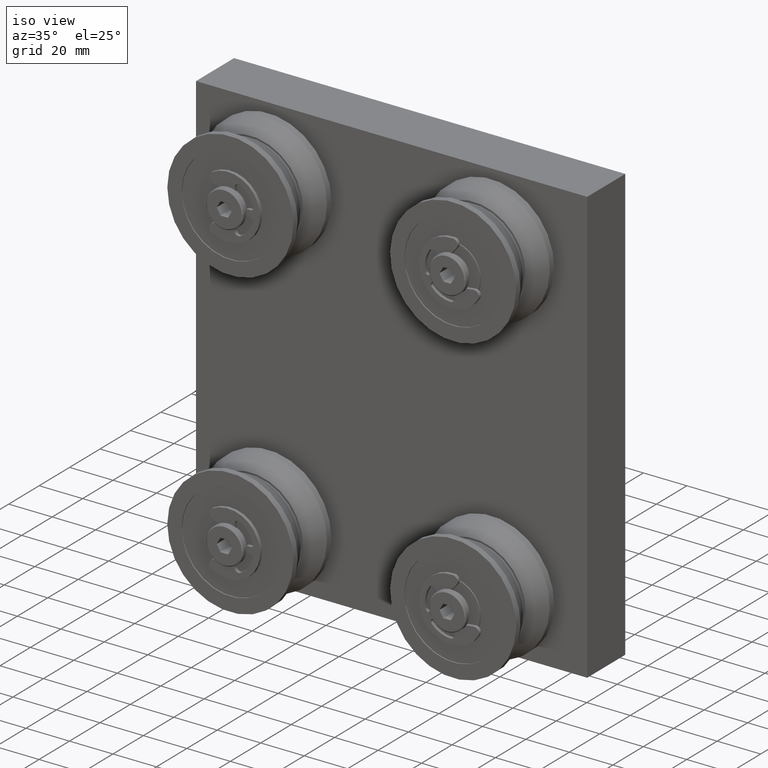
[diagram: clean part render]
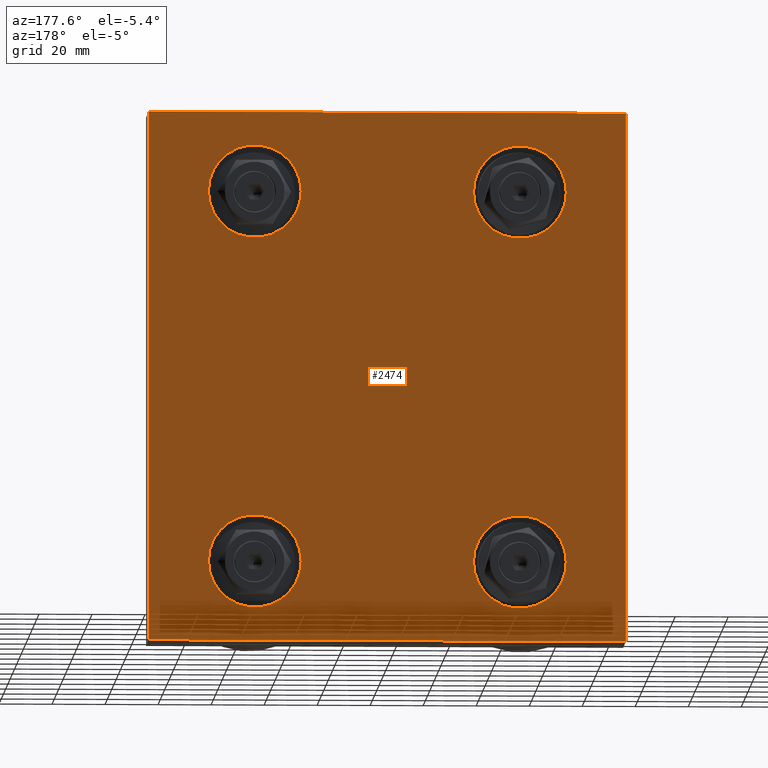
[diagram: tour spotlight — one face highlighted and labeled with its STEP entity id]
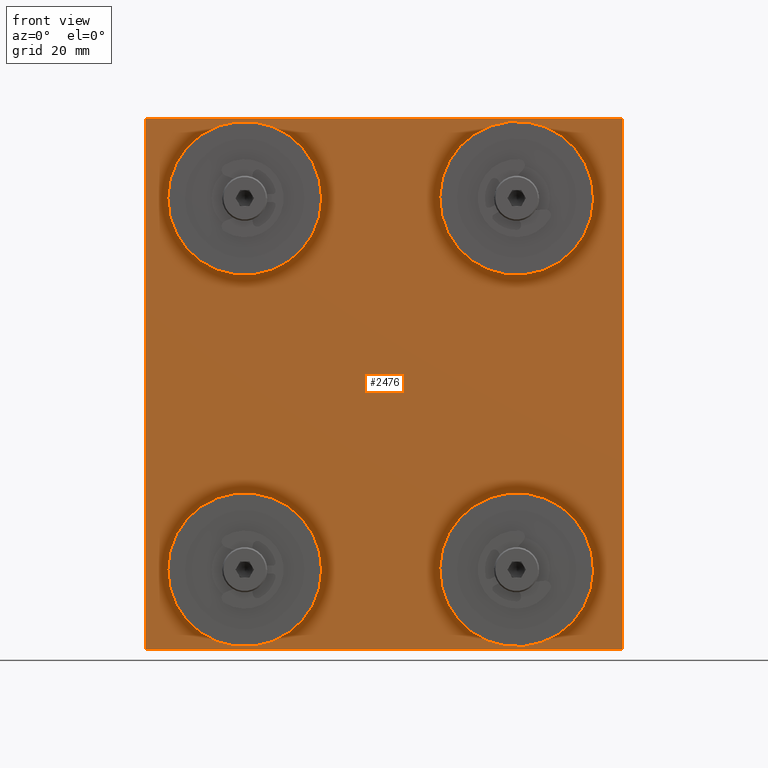
[diagram: tour spotlight — one face highlighted and labeled with its STEP entity id]
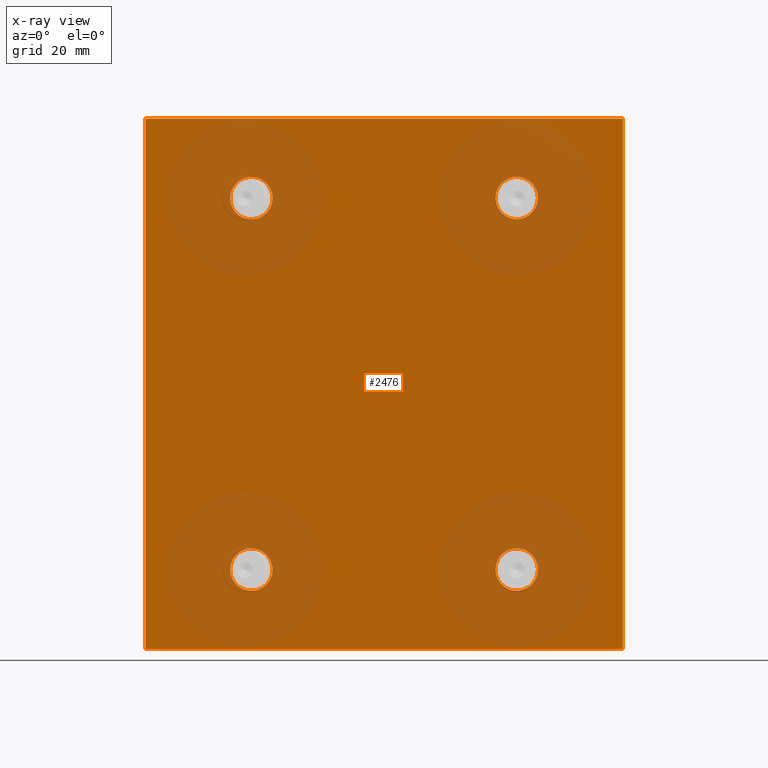
[diagram: x-ray of the same camera — body ghosted, this tour face saturated]
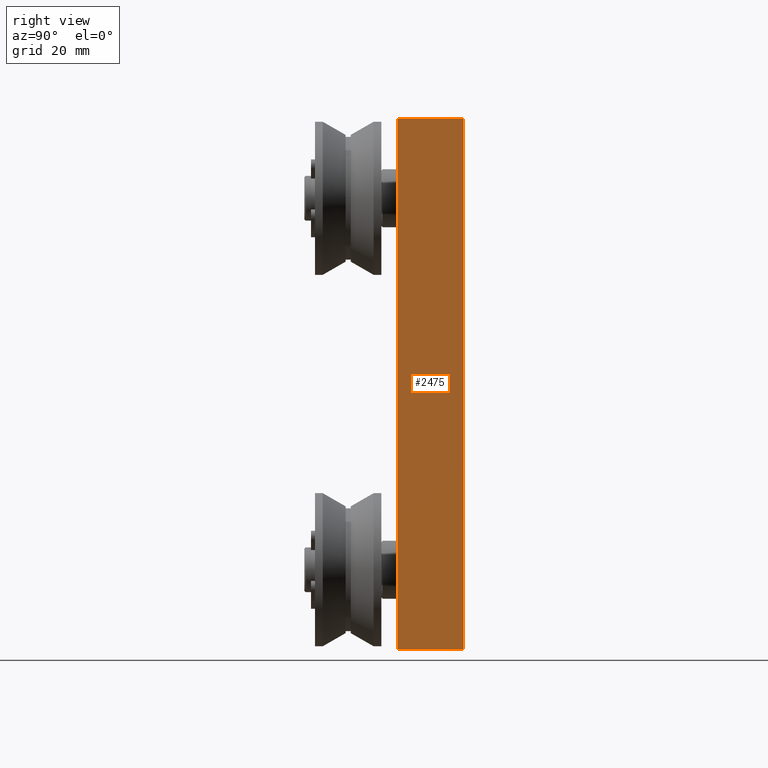
[diagram: tour spotlight — one face highlighted and labeled with its STEP entity id]
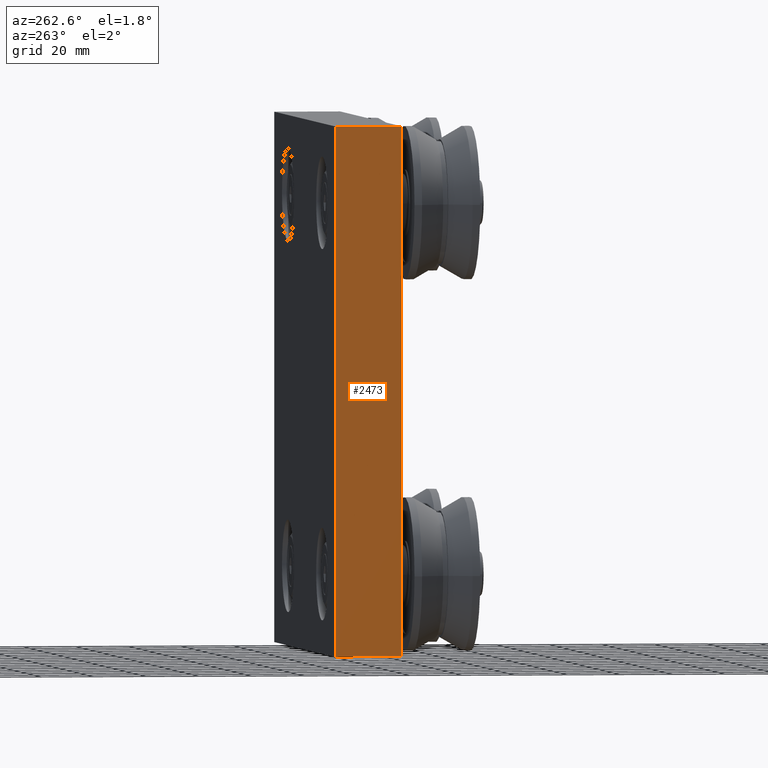
[diagram: tour spotlight — one face highlighted and labeled with its STEP entity id]
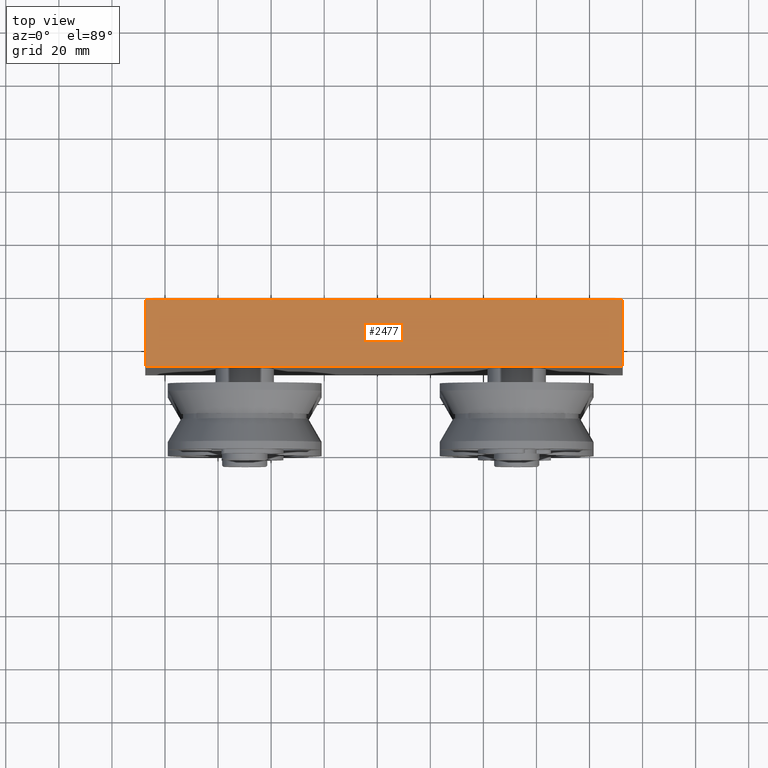
[diagram: tour spotlight — one face highlighted and labeled with its STEP entity id]
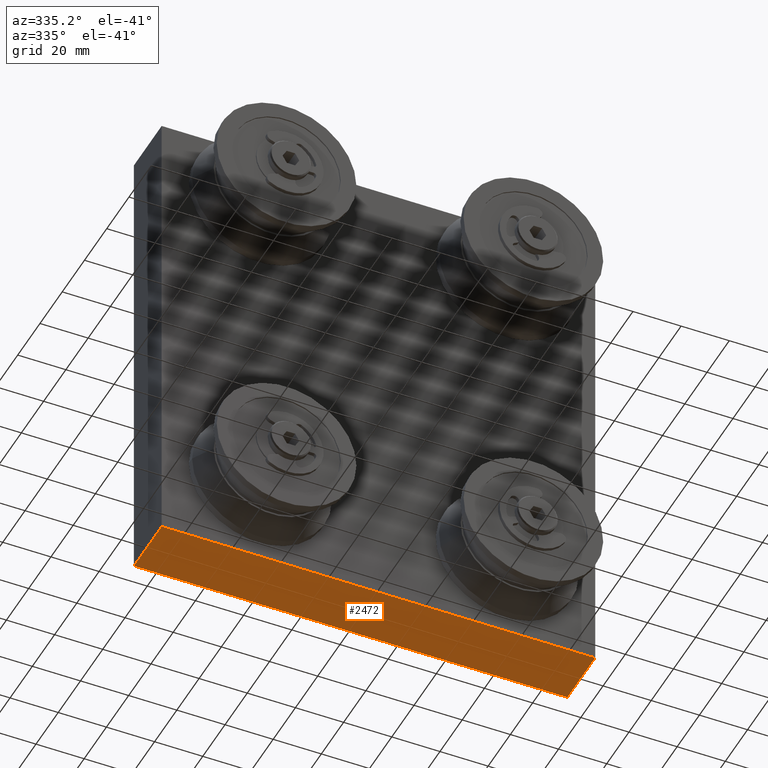
[diagram: tour spotlight — one face highlighted and labeled with its STEP entity id]
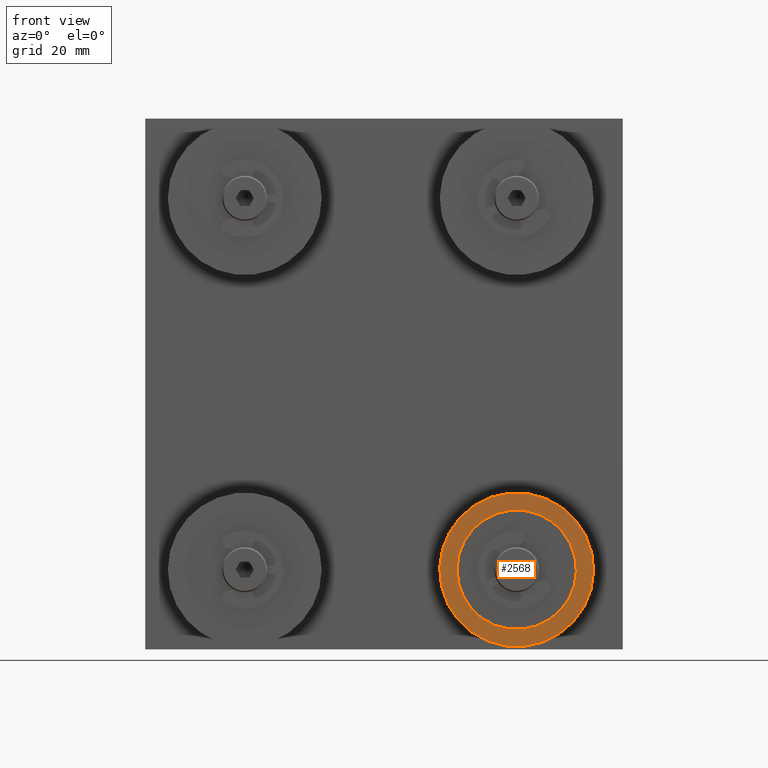
[diagram: tour spotlight — one face highlighted and labeled with its STEP entity id]
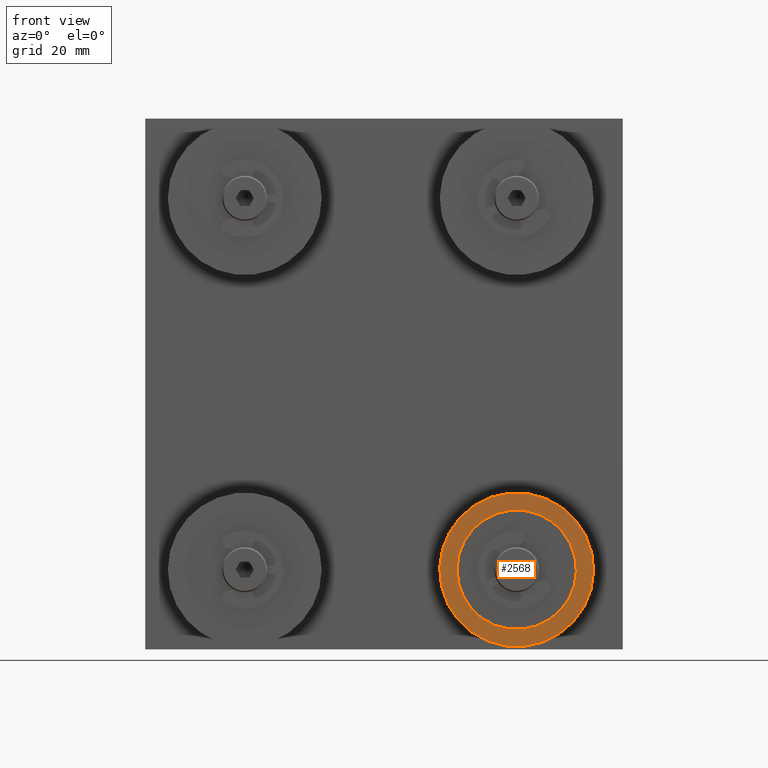
[diagram: tour spotlight — one face highlighted and labeled with its STEP entity id]
A machine part: a face-by-face anatomy tour. The part has 418 B-rep faces; the first image is the clean iso view, then the 8 largest visible faces are spotlighted one at a time (largest first), each with its STEP entity span.

Face 1 — auxiliary view, entity #2474. In plain terms, the highlighted planar face has unit normal (-0, 1, 0).
Definition (entity closure, byte-faithful):
#149=LINE('',#4049,#348);
#153=LINE('',#4056,#352);
#154=LINE('',#4059,#353);
#155=LINE('',#4060,#354);
#348=VECTOR('',#3217,10.);
#352=VECTOR('',#3223,10.);
#353=VECTOR('',#3226,10.);
#354=VECTOR('',#3227,10.);
#586=FACE_BOUND('',#795,.T.);
#587=FACE_BOUND('',#796,.T.);
#588=FACE_BOUND('',#797,.T.);
#589=FACE_BOUND('',#798,.T.);
#629=FACE_OUTER_BOUND('',#794,.T.);
#794=EDGE_LOOP('',(#1720,#1721,#1722,#1723));
#795=EDGE_LOOP('',(#1724));
#796=EDGE_LOOP('',(#1725));
#797=EDGE_LOOP('',(#1726));
#798=EDGE_LOOP('',(#1727));
#972=CIRCLE('',#2829,17.5);
#976=CIRCLE('',#2836,17.5);
#980=CIRCLE('',#2843,17.5);
#984=CIRCLE('',#2850,17.5);
#1108=VERTEX_POINT('',#3996);
#1112=VERTEX_POINT('',#4009);
#1116=VERTEX_POINT('',#4022);
#1120=VERTEX_POINT('',#4035);
#1124=VERTEX_POINT('',#4046);
#1125=VERTEX_POINT('',#4048);
#1127=VERTEX_POINT('',#4054);
#1128=VERTEX_POINT('',#4058);
#1327=EDGE_CURVE('',#1108,#1108,#972,.T.);
#1333=EDGE_CURVE('',#1112,#1112,#976,.T.);
#1339=EDGE_CURVE('',#1116,#1116,#980,.T.);
#1345=EDGE_CURVE('',#1120,#1120,#984,.T.);
#1351=EDGE_CURVE('',#1124,#1125,#149,.T.);
#1355=EDGE_CURVE('',#1127,#1124,#153,.T.);
#1356=EDGE_CURVE('',#1128,#1127,#154,.T.);
#1357=EDGE_CURVE('',#1128,#1125,#155,.T.);
#1720=ORIENTED_EDGE('',*,*,#1355,.F.);
#1721=ORIENTED_EDGE('',*,*,#1356,.F.);
#1722=ORIENTED_EDGE('',*,*,#1357,.T.);
#1723=ORIENTED_EDGE('',*,*,#1351,.F.);
#1724=ORIENTED_EDGE('',*,*,#1327,.T.);
#1725=ORIENTED_EDGE('',*,*,#1333,.T.);
#1726=ORIENTED_EDGE('',*,*,#1339,.T.);
#1727=ORIENTED_EDGE('',*,*,#1345,.T.);
#2372=PLANE('',#2855);
#2474=ADVANCED_FACE('',(#629,#586,#587,#588,#589),#2372,.T.);
#2829=AXIS2_PLACEMENT_3D('',#3997,#3157,#3158);
#2836=AXIS2_PLACEMENT_3D('',#4010,#3173,#3174);
#2843=AXIS2_PLACEMENT_3D('',#4023,#3189,#3190);
#2850=AXIS2_PLACEMENT_3D('',#4036,#3205,#3206);
#2855=AXIS2_PLACEMENT_3D('',#4057,#3224,#3225);
#3157=DIRECTION('center_axis',(2.46716227694479E-16,-1.,0.));
#3158=DIRECTION('ref_axis',(1.,2.46716227694479E-16,0.));
#3173=DIRECTION('center_axis',(2.46716227694479E-16,-1.,0.));
#3174=DIRECTION('ref_axis',(1.,2.46716227694479E-16,0.));
#3189=DIRECTION('center_axis',(2.46716227694479E-16,-1.,0.));
#3190=DIRECTION('ref_axis',(1.,2.46716227694479E-16,0.));
#3205=DIRECTION('center_axis',(2.46716227694479E-16,-1.,0.));
#3206=DIRECTION('ref_axis',(1.,2.46716227694479E-16,0.));
#3217=DIRECTION('',(1.,2.46716227694479E-16,0.));
#3223=DIRECTION('',(0.,0.,-1.));
#3224=DIRECTION('center_axis',(-2.46716227694479E-16,1.,0.));
#3225=DIRECTION('ref_axis',(-1.,-2.46716227694479E-16,0.));
#3226=DIRECTION('',(-1.,-2.46716227694479E-16,0.));
#3227=DIRECTION('',(0.,0.,-1.));
#3996=CARTESIAN_POINT('',(32.5,12.5,-70.));
#3997=CARTESIAN_POINT('Origin',(50.,12.5,-70.));
#4009=CARTESIAN_POINT('',(-67.5,12.5,-70.));
#4010=CARTESIAN_POINT('Origin',(-50.,12.5,-70.));
#4022=CARTESIAN_POINT('',(-67.4999999999999,12.5,70.));
#4023=CARTESIAN_POINT('Origin',(-49.9999999999999,12.5,70.));
#4035=CARTESIAN_POINT('',(32.5000000000001,12.5,70.));
#4036=CARTESIAN_POINT('Origin',(50.0000000000001,12.5,70.));
#4046=CARTESIAN_POINT('',(-90.,12.5,-100.));
#4048=CARTESIAN_POINT('',(90.,12.5,-100.));
#4049=CARTESIAN_POINT('',(-90.,12.5,-100.));
#4054=CARTESIAN_POINT('',(-90.,12.5,100.));
#4056=CARTESIAN_POINT('',(-90.,12.5,0.));
#4057=CARTESIAN_POINT('Origin',(90.,12.5,0.));
#4058=CARTESIAN_POINT('',(90.,12.5,100.));
#4059=CARTESIAN_POINT('',(-90.,12.5,100.));
#4060=CARTESIAN_POINT('',(90.,12.5,0.));

Face 2 — front view, entity #2476. An x-ray twin of the same camera follows (body ghosted, this face saturated) — the face is partly hidden behind the body. In plain terms, the highlighted planar face has unit normal (0, -1, 0).
Definition (entity closure, byte-faithful):
#147=LINE('',#4045,#346);
#151=LINE('',#4053,#350);
#157=LINE('',#4064,#356);
#158=LINE('',#4066,#357);
#346=VECTOR('',#3215,10.);
#350=VECTOR('',#3221,10.);
#356=VECTOR('',#3231,10.);
#357=VECTOR('',#3234,10.);
#590=FACE_BOUND('',#801,.T.);
#591=FACE_BOUND('',#802,.T.);
#592=FACE_BOUND('',#803,.T.);
#593=FACE_BOUND('',#804,.T.);
#631=FACE_OUTER_BOUND('',#800,.T.);
#800=EDGE_LOOP('',(#1732,#1733,#1734,#1735));
#801=EDGE_LOOP('',(#1736));
#802=EDGE_LOOP('',(#1737));
#803=EDGE_LOOP('',(#1738));
#804=EDGE_LOOP('',(#1739));
#973=CIRCLE('',#2831,8.);
#977=CIRCLE('',#2838,8.);
#981=CIRCLE('',#2845,8.);
#985=CIRCLE('',#2852,8.);
#1109=VERTEX_POINT('',#4000);
#1113=VERTEX_POINT('',#4013);
#1117=VERTEX_POINT('',#4026);
#1121=VERTEX_POINT('',#4039);
#1122=VERTEX_POINT('',#4043);
#1123=VERTEX_POINT('',#4044);
#1126=VERTEX_POINT('',#4052);
#1129=VERTEX_POINT('',#4062);
#1330=EDGE_CURVE('',#1109,#1109,#973,.T.);
#1336=EDGE_CURVE('',#1113,#1113,#977,.T.);
#1342=EDGE_CURVE('',#1117,#1117,#981,.T.);
#1348=EDGE_CURVE('',#1121,#1121,#985,.T.);
#1349=EDGE_CURVE('',#1122,#1123,#147,.T.);
#1353=EDGE_CURVE('',#1126,#1123,#151,.T.);
#1359=EDGE_CURVE('',#1122,#1129,#157,.T.);
#1360=EDGE_CURVE('',#1126,#1129,#158,.T.);
#1732=ORIENTED_EDGE('',*,*,#1359,.T.);
#1733=ORIENTED_EDGE('',*,*,#1360,.F.);
#1734=ORIENTED_EDGE('',*,*,#1353,.T.);
#1735=ORIENTED_EDGE('',*,*,#1349,.F.);
#1736=ORIENTED_EDGE('',*,*,#1330,.T.);
#1737=ORIENTED_EDGE('',*,*,#1336,.T.);
#1738=ORIENTED_EDGE('',*,*,#1342,.T.);
#1739=ORIENTED_EDGE('',*,*,#1348,.T.);
#2374=PLANE('',#2857);
#2476=ADVANCED_FACE('',(#631,#590,#591,#592,#593),#2374,.T.);
#2831=AXIS2_PLACEMENT_3D('',#4002,#3163,#3164);
#2838=AXIS2_PLACEMENT_3D('',#4015,#3179,#3180);
#2845=AXIS2_PLACEMENT_3D('',#4028,#3195,#3196);
#2852=AXIS2_PLACEMENT_3D('',#4041,#3211,#3212);
#2857=AXIS2_PLACEMENT_3D('',#4065,#3232,#3233);
#3163=DIRECTION('center_axis',(-1.2335811384724E-16,1.,0.));
#3164=DIRECTION('ref_axis',(1.,2.46716227694479E-16,0.));
#3179=DIRECTION('center_axis',(-1.2335811384724E-16,1.,0.));
#3180=DIRECTION('ref_axis',(1.,2.46716227694479E-16,0.));
#3195=DIRECTION('center_axis',(-1.2335811384724E-16,1.,0.));
#3196=DIRECTION('ref_axis',(1.,2.46716227694479E-16,0.));
#3211=DIRECTION('center_axis',(-1.2335811384724E-16,1.,0.));
#3212=DIRECTION('ref_axis',(1.,2.46716227694479E-16,0.));
#3215=DIRECTION('',(-1.,-1.2335811384724E-16,0.));
#3221=DIRECTION('',(0.,0.,-1.));
#3231=DIRECTION('',(0.,0.,1.));
#3232=DIRECTION('center_axis',(1.2335811384724E-16,-1.,0.));
#3233=DIRECTION('ref_axis',(1.,1.2335811384724E-16,0.));
#3234=DIRECTION('',(1.,1.2335811384724E-16,0.));
#4000=CARTESIAN_POINT('',(42.,-12.5,-70.));
#4002=CARTESIAN_POINT('Origin',(50.,-12.5,-70.));
#4013=CARTESIAN_POINT('',(-58.,-12.5,-70.));
#4015=CARTESIAN_POINT('Origin',(-50.,-12.5,-70.));
#4026=CARTESIAN_POINT('',(-57.9999999999999,-12.5,70.));
#4028=CARTESIAN_POINT('Origin',(-49.9999999999999,-12.5,70.));
#4039=CARTESIAN_POINT('',(42.0000000000001,-12.5,70.));
#4041=CARTESIAN_POINT('Origin',(50.0000000000001,-12.5,70.));
#4043=CARTESIAN_POINT('',(90.,-12.5,-100.));
#4044=CARTESIAN_POINT('',(-90.,-12.5,-100.));
#4045=CARTESIAN_POINT('',(90.,-12.5,-100.));
#4052=CARTESIAN_POINT('',(-90.,-12.5,100.));
#4053=CARTESIAN_POINT('',(-90.,-12.5,0.));
#4062=CARTESIAN_POINT('',(90.,-12.5,100.));
#4064=CARTESIAN_POINT('',(90.,-12.5,0.));
#4065=CARTESIAN_POINT('Origin',(-90.,-12.5,0.));
#4066=CARTESIAN_POINT('',(90.,-12.5,100.));

Face 3 — right view, entity #2475. In plain terms, the highlighted planar face has unit normal (1, 0, 0).
Definition (entity closure, byte-faithful):
#150=LINE('',#4050,#349);
#155=LINE('',#4060,#354);
#156=LINE('',#4063,#355);
#157=LINE('',#4064,#356);
#349=VECTOR('',#3218,10.);
#354=VECTOR('',#3227,10.);
#355=VECTOR('',#3230,10.);
#356=VECTOR('',#3231,10.);
#630=FACE_OUTER_BOUND('',#799,.T.);
#799=EDGE_LOOP('',(#1728,#1729,#1730,#1731));
#1122=VERTEX_POINT('',#4043);
#1125=VERTEX_POINT('',#4048);
#1128=VERTEX_POINT('',#4058);
#1129=VERTEX_POINT('',#4062);
#1352=EDGE_CURVE('',#1125,#1122,#150,.T.);
#1357=EDGE_CURVE('',#1128,#1125,#155,.T.);
#1358=EDGE_CURVE('',#1129,#1128,#156,.T.);
#1359=EDGE_CURVE('',#1122,#1129,#157,.T.);
#1728=ORIENTED_EDGE('',*,*,#1357,.F.);
#1729=ORIENTED_EDGE('',*,*,#1358,.F.);
#1730=ORIENTED_EDGE('',*,*,#1359,.F.);
#1731=ORIENTED_EDGE('',*,*,#1352,.F.);
#2373=PLANE('',#2856);
#2475=ADVANCED_FACE('',(#630),#2373,.T.);
#2856=AXIS2_PLACEMENT_3D('',#4061,#3228,#3229);
#3218=DIRECTION('',(0.,-1.,0.));
#3227=DIRECTION('',(0.,0.,-1.));
#3228=DIRECTION('center_axis',(1.,0.,0.));
#3229=DIRECTION('ref_axis',(0.,1.,0.));
#3230=DIRECTION('',(0.,1.,0.));
#3231=DIRECTION('',(0.,0.,1.));
#4043=CARTESIAN_POINT('',(90.,-12.5,-100.));
#4048=CARTESIAN_POINT('',(90.,12.5,-100.));
#4050=CARTESIAN_POINT('',(90.,12.5,-100.));
#4058=CARTESIAN_POINT('',(90.,12.5,100.));
#4060=CARTESIAN_POINT('',(90.,12.5,0.));
#4061=CARTESIAN_POINT('Origin',(90.,-12.5,0.));
#4062=CARTESIAN_POINT('',(90.,-12.5,100.));
#4063=CARTESIAN_POINT('',(90.,12.5,100.));
#4064=CARTESIAN_POINT('',(90.,-12.5,0.));

Face 4 — auxiliary view, entity #2473. In plain terms, the highlighted planar face has unit normal (-1, 0, 0).
Definition (entity closure, byte-faithful):
#148=LINE('',#4047,#347);
#151=LINE('',#4053,#350);
#152=LINE('',#4055,#351);
#153=LINE('',#4056,#352);
#347=VECTOR('',#3216,10.);
#350=VECTOR('',#3221,10.);
#351=VECTOR('',#3222,10.);
#352=VECTOR('',#3223,10.);
#628=FACE_OUTER_BOUND('',#793,.T.);
#793=EDGE_LOOP('',(#1716,#1717,#1718,#1719));
#1123=VERTEX_POINT('',#4044);
#1124=VERTEX_POINT('',#4046);
#1126=VERTEX_POINT('',#4052);
#1127=VERTEX_POINT('',#4054);
#1350=EDGE_CURVE('',#1123,#1124,#148,.T.);
#1353=EDGE_CURVE('',#1126,#1123,#151,.T.);
#1354=EDGE_CURVE('',#1127,#1126,#152,.T.);
#1355=EDGE_CURVE('',#1127,#1124,#153,.T.);
#1716=ORIENTED_EDGE('',*,*,#1353,.F.);
#1717=ORIENTED_EDGE('',*,*,#1354,.F.);
#1718=ORIENTED_EDGE('',*,*,#1355,.T.);
#1719=ORIENTED_EDGE('',*,*,#1350,.F.);
#2371=PLANE('',#2854);
#2473=ADVANCED_FACE('',(#628),#2371,.T.);
#2854=AXIS2_PLACEMENT_3D('',#4051,#3219,#3220);
#3216=DIRECTION('',(0.,1.,0.));
#3219=DIRECTION('center_axis',(-1.,0.,0.));
#3220=DIRECTION('ref_axis',(0.,-1.,0.));
#3221=DIRECTION('',(0.,0.,-1.));
#3222=DIRECTION('',(0.,-1.,0.));
#3223=DIRECTION('',(0.,0.,-1.));
#4044=CARTESIAN_POINT('',(-90.,-12.5,-100.));
#4046=CARTESIAN_POINT('',(-90.,12.5,-100.));
#4047=CARTESIAN_POINT('',(-90.,-12.5,-100.));
#4051=CARTESIAN_POINT('Origin',(-90.,12.5,0.));
#4052=CARTESIAN_POINT('',(-90.,-12.5,100.));
#4053=CARTESIAN_POINT('',(-90.,-12.5,0.));
#4054=CARTESIAN_POINT('',(-90.,12.5,100.));
#4055=CARTESIAN_POINT('',(-90.,-12.5,100.));
#4056=CARTESIAN_POINT('',(-90.,12.5,0.));

Face 5 — top view, entity #2477. In plain terms, the highlighted planar face has unit normal (0, 0, 1).
Definition (entity closure, byte-faithful):
#152=LINE('',#4055,#351);
#154=LINE('',#4059,#353);
#156=LINE('',#4063,#355);
#158=LINE('',#4066,#357);
#351=VECTOR('',#3222,10.);
#353=VECTOR('',#3226,10.);
#355=VECTOR('',#3230,10.);
#357=VECTOR('',#3234,10.);
#632=FACE_OUTER_BOUND('',#805,.T.);
#805=EDGE_LOOP('',(#1740,#1741,#1742,#1743));
#1126=VERTEX_POINT('',#4052);
#1127=VERTEX_POINT('',#4054);
#1128=VERTEX_POINT('',#4058);
#1129=VERTEX_POINT('',#4062);
#1354=EDGE_CURVE('',#1127,#1126,#152,.T.);
#1356=EDGE_CURVE('',#1128,#1127,#154,.T.);
#1358=EDGE_CURVE('',#1129,#1128,#156,.T.);
#1360=EDGE_CURVE('',#1126,#1129,#158,.T.);
#1740=ORIENTED_EDGE('',*,*,#1360,.T.);
#1741=ORIENTED_EDGE('',*,*,#1358,.T.);
#1742=ORIENTED_EDGE('',*,*,#1356,.T.);
#1743=ORIENTED_EDGE('',*,*,#1354,.T.);
#2375=PLANE('',#2858);
#2477=ADVANCED_FACE('',(#632),#2375,.T.);
#2858=AXIS2_PLACEMENT_3D('',#4067,#3235,#3236);
#3222=DIRECTION('',(0.,-1.,0.));
#3226=DIRECTION('',(-1.,-2.46716227694479E-16,0.));
#3230=DIRECTION('',(0.,1.,0.));
#3234=DIRECTION('',(1.,1.2335811384724E-16,0.));
#3235=DIRECTION('center_axis',(0.,0.,1.));
#3236=DIRECTION('ref_axis',(1.,0.,0.));
#4052=CARTESIAN_POINT('',(-90.,-12.5,100.));
#4054=CARTESIAN_POINT('',(-90.,12.5,100.));
#4055=CARTESIAN_POINT('',(-90.,-12.5,100.));
#4058=CARTESIAN_POINT('',(90.,12.5,100.));
#4059=CARTESIAN_POINT('',(-90.,12.5,100.));
#4062=CARTESIAN_POINT('',(90.,-12.5,100.));
#4063=CARTESIAN_POINT('',(90.,12.5,100.));
#4066=CARTESIAN_POINT('',(90.,-12.5,100.));
#4067=CARTESIAN_POINT('Origin',(3.5527136788005E-14,-2.22044604925031E-15,
100.));

Face 6 — auxiliary view, entity #2472. In plain terms, the highlighted planar face has unit normal (0, 0, -1).
Definition (entity closure, byte-faithful):
#147=LINE('',#4045,#346);
#148=LINE('',#4047,#347);
#149=LINE('',#4049,#348);
#150=LINE('',#4050,#349);
#346=VECTOR('',#3215,10.);
#347=VECTOR('',#3216,10.);
#348=VECTOR('',#3217,10.);
#349=VECTOR('',#3218,10.);
#627=FACE_OUTER_BOUND('',#792,.T.);
#792=EDGE_LOOP('',(#1712,#1713,#1714,#1715));
#1122=VERTEX_POINT('',#4043);
#1123=VERTEX_POINT('',#4044);
#1124=VERTEX_POINT('',#4046);
#1125=VERTEX_POINT('',#4048);
#1349=EDGE_CURVE('',#1122,#1123,#147,.T.);
#1350=EDGE_CURVE('',#1123,#1124,#148,.T.);
#1351=EDGE_CURVE('',#1124,#1125,#149,.T.);
#1352=EDGE_CURVE('',#1125,#1122,#150,.T.);
#1712=ORIENTED_EDGE('',*,*,#1349,.T.);
#1713=ORIENTED_EDGE('',*,*,#1350,.T.);
#1714=ORIENTED_EDGE('',*,*,#1351,.T.);
#1715=ORIENTED_EDGE('',*,*,#1352,.T.);
#2370=PLANE('',#2853);
#2472=ADVANCED_FACE('',(#627),#2370,.T.);
#2853=AXIS2_PLACEMENT_3D('',#4042,#3213,#3214);
#3213=DIRECTION('center_axis',(0.,0.,-1.));
#3214=DIRECTION('ref_axis',(-1.,0.,0.));
#3215=DIRECTION('',(-1.,-1.2335811384724E-16,0.));
#3216=DIRECTION('',(0.,1.,0.));
#3217=DIRECTION('',(1.,2.46716227694479E-16,0.));
#3218=DIRECTION('',(0.,-1.,0.));
#4042=CARTESIAN_POINT('Origin',(3.5527136788005E-14,-2.22044604925031E-15,
-100.));
#4043=CARTESIAN_POINT('',(90.,-12.5,-100.));
#4044=CARTESIAN_POINT('',(-90.,-12.5,-100.));
#4045=CARTESIAN_POINT('',(90.,-12.5,-100.));
#4046=CARTESIAN_POINT('',(-90.,12.5,-100.));
#4047=CARTESIAN_POINT('',(-90.,-12.5,-100.));
#4048=CARTESIAN_POINT('',(90.,12.5,-100.));
#4049=CARTESIAN_POINT('',(-90.,12.5,-100.));
#4050=CARTESIAN_POINT('',(90.,12.5,-100.));

Face 7 — front view, entity #2568. In plain terms, the highlighted planar face has unit normal (0, -1, 0).
Definition (entity closure, byte-faithful):
#607=FACE_BOUND('',#910,.T.);
#723=FACE_OUTER_BOUND('',#909,.T.);
#909=EDGE_LOOP('',(#2126));
#910=EDGE_LOOP('',(#2127));
#1053=CIRCLE('',#3021,22.5);
#1054=CIRCLE('',#3023,29.);
#1248=VERTEX_POINT('',#4471);
#1249=VERTEX_POINT('',#4475);
#1552=EDGE_CURVE('',#1248,#1248,#1053,.T.);
#1553=EDGE_CURVE('',#1249,#1249,#1054,.T.);
#2126=ORIENTED_EDGE('',*,*,#1553,.F.);
#2127=ORIENTED_EDGE('',*,*,#1552,.T.);
#2438=PLANE('',#3022);
#2568=ADVANCED_FACE('',(#723,#607),#2438,.T.);
#3021=AXIS2_PLACEMENT_3D('',#4473,#3685,#3686);
#3022=AXIS2_PLACEMENT_3D('',#4474,#3687,#3688);
#3023=AXIS2_PLACEMENT_3D('',#4476,#3689,#3690);
#3685=DIRECTION('center_axis',(1.,0.,0.));
#3686=DIRECTION('ref_axis',(0.,1.,0.));
#3687=DIRECTION('center_axis',(-1.,0.,0.));
#3688=DIRECTION('ref_axis',(0.,0.,1.));
#3689=DIRECTION('center_axis',(1.,0.,0.));
#3690=DIRECTION('ref_axis',(0.,1.,0.));
#4471=CARTESIAN_POINT('',(-12.5,-22.5,-2.75545529808154E-15));
#4473=CARTESIAN_POINT('Origin',(-12.5,0.,0.));
#4474=CARTESIAN_POINT('Origin',(-12.5,25.75,0.));
#4475=CARTESIAN_POINT('',(-12.5,-29.,-3.55147571752732E-15));
#4476=CARTESIAN_POINT('Origin',(-12.5,0.,0.));

Face 8 — front view, entity #2568. In plain terms, the highlighted planar face has unit normal (0, -1, 0).
Definition (entity closure, byte-faithful):
#607=FACE_BOUND('',#910,.T.);
#723=FACE_OUTER_BOUND('',#909,.T.);
#909=EDGE_LOOP('',(#2126));
#910=EDGE_LOOP('',(#2127));
#1053=CIRCLE('',#3021,22.5);
#1054=CIRCLE('',#3023,29.);
#1248=VERTEX_POINT('',#4471);
#1249=VERTEX_POINT('',#4475);
#1552=EDGE_CURVE('',#1248,#1248,#1053,.T.);
#1553=EDGE_CURVE('',#1249,#1249,#1054,.T.);
#2126=ORIENTED_EDGE('',*,*,#1553,.F.);
#2127=ORIENTED_EDGE('',*,*,#1552,.T.);
#2438=PLANE('',#3022);
#2568=ADVANCED_FACE('',(#723,#607),#2438,.T.);
#3021=AXIS2_PLACEMENT_3D('',#4473,#3685,#3686);
#3022=AXIS2_PLACEMENT_3D('',#4474,#3687,#3688);
#3023=AXIS2_PLACEMENT_3D('',#4476,#3689,#3690);
#3685=DIRECTION('center_axis',(1.,0.,0.));
#3686=DIRECTION('ref_axis',(0.,1.,0.));
#3687=DIRECTION('center_axis',(-1.,0.,0.));
#3688=DIRECTION('ref_axis',(0.,0.,1.));
#3689=DIRECTION('center_axis',(1.,0.,0.));
#3690=DIRECTION('ref_axis',(0.,1.,0.));
#4471=CARTESIAN_POINT('',(-12.5,-22.5,-2.75545529808154E-15));
#4473=CARTESIAN_POINT('Origin',(-12.5,0.,0.));
#4474=CARTESIAN_POINT('Origin',(-12.5,25.75,0.));
#4475=CARTESIAN_POINT('',(-12.5,-29.,-3.55147571752732E-15));
#4476=CARTESIAN_POINT('Origin',(-12.5,0.,0.));